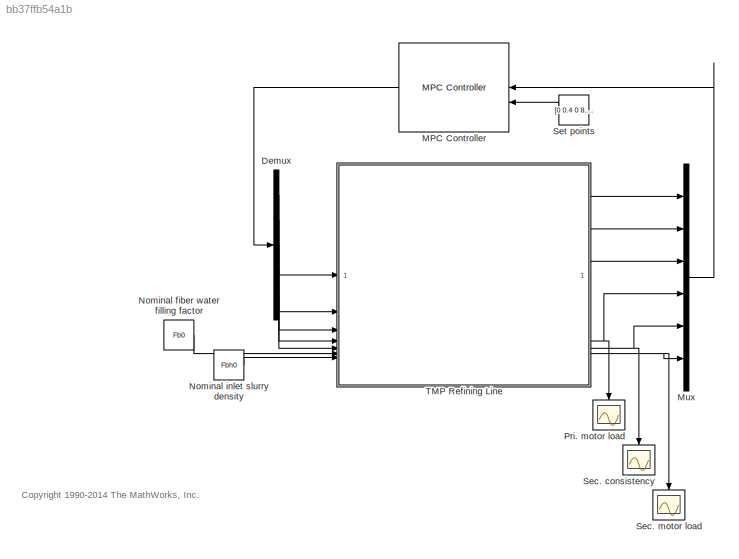
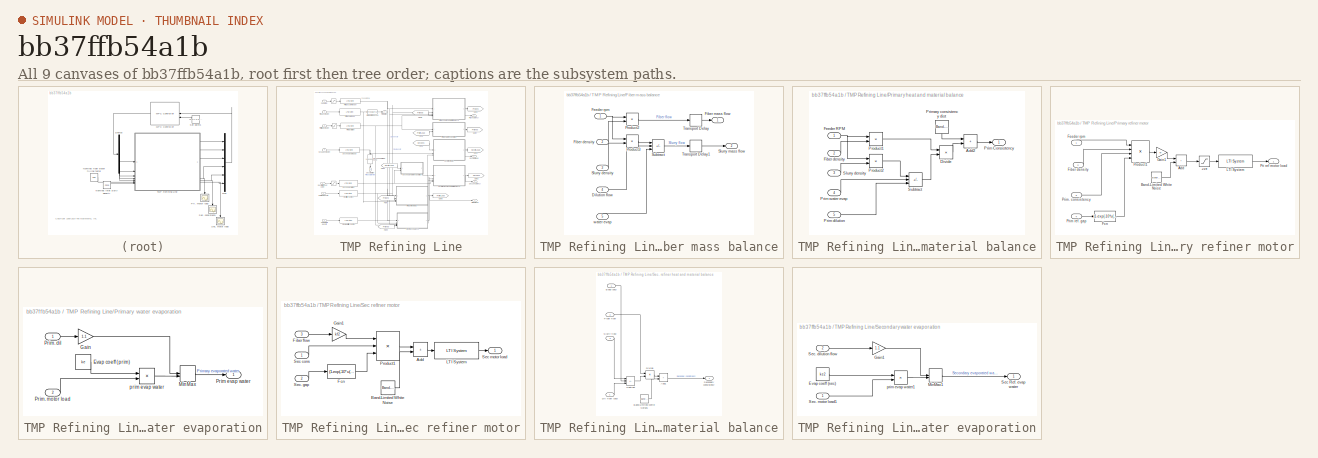
[diagram: thumbnail index - all 9 canvases of the model, root first then tree order]
MODEL slx_bb37ffb54a1b
KIND model
CONFIG AbsTol = auto
CONFIG EnableMultiTasking = off
CONFIG FixedStep = auto
CONFIG MaxStep = auto
CONFIG MinStep = auto
CONFIG RelTol = 1e-3
CONFIG SampleTimeConstraint = Unconstrained
CONFIG SolverName = VariableStepAuto
CONFIG StartTime = 0.0
CONFIG StopTime = 100
BLOCK [Demux] Demux
  Outputs = 5
BLOCK [Reference] MPC Controller  REF=mpclib/MPC Controller  (lib defined in mdl_ae329e0e0455)
  SourceBlock = mpclib/MPC Controller
  SourceType = MPC
BLOCK [Mux] Mux
  DisplayOption = bar
  Inputs = 6
BLOCK [Constant] Nominal fiber water filling factor
  NameLocation = top
  Value = Fb0
BLOCK [Constant] Nominal inlet slurry density
  Value = Fbh0
BLOCK [Scope] Pri. motor load
  Floating = off
  NameLocation = left
  NumInputPorts = 1
  ScopeSpecificationString = Simulink.scopes.TimeScopeBlockCfg('CurrentConfiguration', extmgr.ConfigurationSet(extmgr.Configuration('Core','General UI',true),extmgr.Configuration('Core','Source UI',true),extmgr.Configuration('Sources','WiredSimulink',true,'DataLoggingSaveFormat','StructureWithTime','DataLoggingLimitDataPoints',true,'DataLoggingDecimation','1','DataLoggingVariableName','ScopeData1'),extmgr.Configuration('Visua...<+1660ch>
BLOCK [Scope] Sec. consistency
  Floating = off
  NameLocation = left
  NumInputPorts = 1
  ScopeSpecificationString = Simulink.scopes.TimeScopeBlockCfg('CurrentConfiguration', extmgr.ConfigurationSet(extmgr.Configuration('Core','General UI',true),extmgr.Configuration('Core','Source UI',true),extmgr.Configuration('Sources','WiredSimulink',true,'DataLoggingVariableName','ScopeData2','DataLoggingSaveFormat','StructureWithTime','DataLoggingLimitDataPoints',true,'DataLoggingDecimation','1'),extmgr.Configuration('Visua...<+1660ch>
BLOCK [Scope] Sec. motor load
  Floating = off
  NameLocation = left
  NumInputPorts = 1
  ScopeSpecificationString = Simulink.scopes.TimeScopeBlockCfg('CurrentConfiguration', extmgr.ConfigurationSet(extmgr.Configuration('Core','General UI',true),extmgr.Configuration('Core','Source UI',true),extmgr.Configuration('Sources','WiredSimulink',true,'DataLoggingSaveFormat','StructureWithTime','DataLoggingLimitDataPoints',true,'DataLoggingDecimation','1'),extmgr.Configuration('Visuals','Time Domain',true,'SerializedDispl...<+1621ch>
BLOCK [Constant] Set points
  NameLocation = top
  Value = [0 0.4 0 8.5 0.3 6]
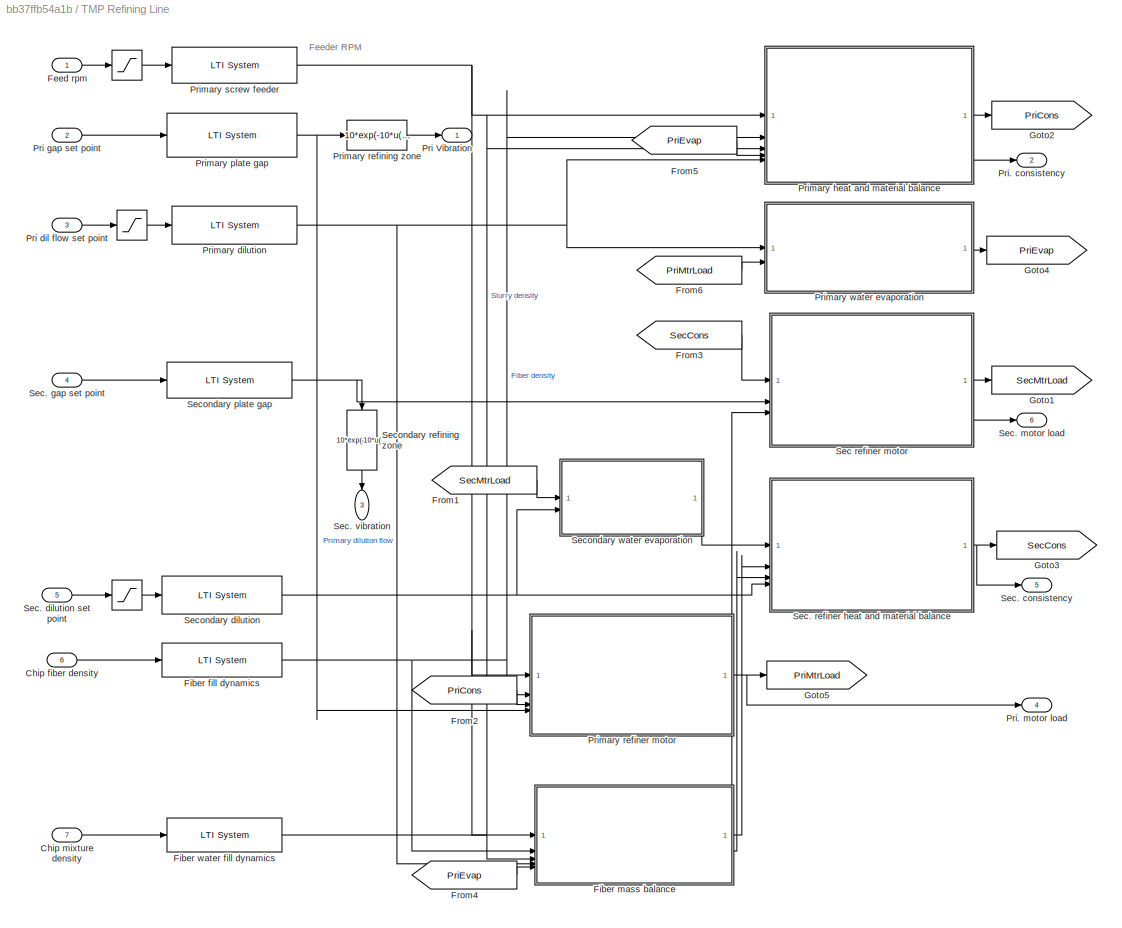
BLOCK [SubSystem] TMP Refining Line
BLOCK [Saturate] TMP Refining Line/  
  LowerLimit = 25
  SampleTime = 0.5
  UpperLimit = 35
BLOCK [Saturate] TMP Refining Line/    
  LowerLimit = 90
  SampleTime = 0.5
  UpperLimit = 200
BLOCK [Saturate] TMP Refining Line/       
  LowerLimit = 90
  SampleTime = 0.5
  UpperLimit = 200
BLOCK [Inport] TMP Refining Line/Chip fiber density
  Port = 6
BLOCK [Inport] TMP Refining Line/Chip mixture density
  Port = 7
BLOCK [Inport] TMP Refining Line/Feed rpm
BLOCK [Reference] TMP Refining Line/Fiber fill dynamics  REF=cstblocks/LTI System
  SourceBlock = cstblocks/LTI System
  SourceType = LTI Block
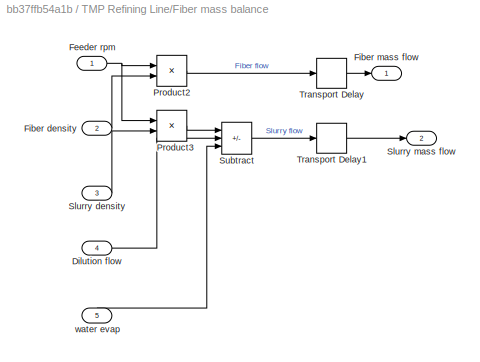
BLOCK [SubSystem] TMP Refining Line/Fiber mass balance
BLOCK [Inport] TMP Refining Line/Fiber mass balance/Dilution flow
  Port = 4
BLOCK [Inport] TMP Refining Line/Fiber mass balance/Feeder rpm
BLOCK [Inport] TMP Refining Line/Fiber mass balance/Fiber density
  Port = 2
BLOCK [Outport] TMP Refining Line/Fiber mass balance/Fiber mass flow
BLOCK [Product] TMP Refining Line/Fiber mass balance/Product2
  RndMeth = Zero
BLOCK [Product] TMP Refining Line/Fiber mass balance/Product3
  RndMeth = Zero
BLOCK [Inport] TMP Refining Line/Fiber mass balance/Slurry density
  Port = 3
BLOCK [Outport] TMP Refining Line/Fiber mass balance/Slurry mass flow
  Port = 2
BLOCK [Sum] TMP Refining Line/Fiber mass balance/Subtract
  IconShape = rectangular
  Inputs = ++-
BLOCK [TransportDelay] TMP Refining Line/Fiber mass balance/Transport Delay
  DelayTime = 2
  InitialOutput = m2
BLOCK [TransportDelay] TMP Refining Line/Fiber mass balance/Transport Delay1
  DelayTime = 2
  InitialOutput = M2
BLOCK [Inport] TMP Refining Line/Fiber mass balance/water evap
  NameLocation = right
  Port = 5
BLOCK [Reference] TMP Refining Line/Fiber water fill dynamics  REF=cstblocks/LTI System
  SourceBlock = cstblocks/LTI System
  SourceType = LTI Block
BLOCK [From] TMP Refining Line/From1
  CloseFcn = tagdialog Close
  GotoTag = SecMtrLoad
BLOCK [From] TMP Refining Line/From2
  CloseFcn = tagdialog Close
  GotoTag = PriCons
BLOCK [From] TMP Refining Line/From3
  CloseFcn = tagdialog Close
  GotoTag = SecCons
BLOCK [From] TMP Refining Line/From4
  CloseFcn = tagdialog Close
  GotoTag = PriEvap
BLOCK [From] TMP Refining Line/From5
  CloseFcn = tagdialog Close
  GotoTag = PriEvap
BLOCK [From] TMP Refining Line/From6
  CloseFcn = tagdialog Close
  GotoTag = PriMtrLoad
BLOCK [Goto] TMP Refining Line/Goto1
  GotoTag = SecMtrLoad
BLOCK [Goto] TMP Refining Line/Goto2
  GotoTag = PriCons
BLOCK [Goto] TMP Refining Line/Goto3
  GotoTag = SecCons
BLOCK [Goto] TMP Refining Line/Goto4
  GotoTag = PriEvap
BLOCK [Goto] TMP Refining Line/Goto5
  GotoTag = PriMtrLoad
BLOCK [Outport] TMP Refining Line/Pri Vibration
BLOCK [Inport] TMP Refining Line/Pri dil flow set point
  Port = 3
BLOCK [Inport] TMP Refining Line/Pri gap set point
  Port = 2
BLOCK [Outport] TMP Refining Line/Pri. consistency
  Port = 2
BLOCK [Outport] TMP Refining Line/Pri. motor load
  Port = 4
BLOCK [Reference] TMP Refining Line/Primary dilution  REF=cstblocks/LTI System
  SourceBlock = cstblocks/LTI System
  SourceType = LTI Block
BLOCK [SubSystem] TMP Refining Line/Primary heat and material balance
BLOCK [Sum] TMP Refining Line/Primary heat and material balance/Add2
  IconShape = rectangular
BLOCK [Product] TMP Refining Line/Primary heat and material balance/Divide
  Inputs = */
  SampleTime = .5
BLOCK [Inport] TMP Refining Line/Primary heat and material balance/Feeder RPM
BLOCK [Inport] TMP Refining Line/Primary heat and material balance/Fiber density
  Port = 2
BLOCK [Outport] TMP Refining Line/Primary heat and material balance/Prim Consistency
BLOCK [Inport] TMP Refining Line/Primary heat and material balance/Prim dilution
  Port = 5
BLOCK [Inport] TMP Refining Line/Primary heat and material balance/Prim water evap
  Port = 4
BLOCK [Reference] TMP Refining Line/Primary heat and material balance/Primary consistency dist  REF=simulink/Sources/Band-Limited
White Noise
  NameLocation = left
  SourceBlock = simulink/Sources/Band-Limited\nWhite Noise
  SourceType = Band-Limited White Noise.
BLOCK [Product] TMP Refining Line/Primary heat and material balance/Product1
  RndMeth = Zero
BLOCK [Product] TMP Refining Line/Primary heat and material balance/Product2
  RndMeth = Zero
BLOCK [Inport] TMP Refining Line/Primary heat and material balance/Slurry density
  Port = 3
BLOCK [Sum] TMP Refining Line/Primary heat and material balance/Subtract
  IconShape = rectangular
  Inputs = +-+
BLOCK [Reference] TMP Refining Line/Primary plate gap  REF=cstblocks/LTI System
  SourceBlock = cstblocks/LTI System
  SourceType = LTI Block
BLOCK [SubSystem] TMP Refining Line/Primary refiner motor
BLOCK [Saturate] TMP Refining Line/Primary refiner motor/+ve
  LowerLimit = 0
  SampleTime = 0.5
  UpperLimit = inf
BLOCK [Sum] TMP Refining Line/Primary refiner motor/Add
  IconShape = rectangular
BLOCK [Reference] TMP Refining Line/Primary refiner motor/Band-Limited White Noise  REF=simulink/Sources/Band-Limited
White Noise
  SourceBlock = simulink/Sources/Band-Limited\nWhite Noise
  SourceType = Band-Limited White Noise.
BLOCK [Fcn] TMP Refining Line/Primary refiner motor/Fcn
  Expr = (1-exp(-10*u(1)))*(1.2-0.3*u(1))
BLOCK [Inport] TMP Refining Line/Primary refiner motor/Feeder rpm
  NameLocation = right
BLOCK [Inport] TMP Refining Line/Primary refiner motor/Fiber density
  Port = 2
BLOCK [Gain] TMP Refining Line/Primary refiner motor/Gain1
  Gain = kf
BLOCK [Reference] TMP Refining Line/Primary refiner motor/LTI System  REF=cstblocks/LTI System
  SourceBlock = cstblocks/LTI System
  SourceType = LTI Block
BLOCK [Outport] TMP Refining Line/Primary refiner motor/Pri ref motor load
BLOCK [Inport] TMP Refining Line/Primary refiner motor/Prim ref. gap
  Port = 4
BLOCK [Inport] TMP Refining Line/Primary refiner motor/Prim. consistency
  Port = 3
BLOCK [Product] TMP Refining Line/Primary refiner motor/Product1
  Inputs = 4
  RndMeth = Zero
BLOCK [Fcn] TMP Refining Line/Primary refining zone
  Expr = 10*exp(-10*u(1)+2)*(1.26-0.3*u(1))-(1-exp(-10*u(1)+2))*.3+.3
BLOCK [Reference] TMP Refining Line/Primary screw feeder  REF=cstblocks/LTI System
  SourceBlock = cstblocks/LTI System
  SourceType = LTI Block
BLOCK [SubSystem] TMP Refining Line/Primary water evaporation
BLOCK [Constant] TMP Refining Line/Primary water evaporation/Evap coeff (prim)
  Value = ke
BLOCK [Gain] TMP Refining Line/Primary water evaporation/Gain
  Gain = 1.1
BLOCK [MinMax] TMP Refining Line/Primary water evaporation/MinMax
  Inputs = 2
BLOCK [Outport] TMP Refining Line/Primary water evaporation/Prim evap water
BLOCK [Inport] TMP Refining Line/Primary water evaporation/Prim. dil
BLOCK [Inport] TMP Refining Line/Primary water evaporation/Prim. motor load
  Port = 2
BLOCK [Product] TMP Refining Line/Primary water evaporation/prim evap water
  RndMeth = Zero
BLOCK [SubSystem] TMP Refining Line/Sec refiner motor
BLOCK [Sum] TMP Refining Line/Sec refiner motor/Add
  IconShape = rectangular
BLOCK [Reference] TMP Refining Line/Sec refiner motor/Band-Limited White Noise  REF=simulink/Sources/Band-Limited
White Noise
  SourceBlock = simulink/Sources/Band-Limited\nWhite Noise
  SourceType = Band-Limited White Noise.
BLOCK [Fcn] TMP Refining Line/Sec refiner motor/Fcn
  Expr = (1-exp(-10*u(1)))*(1.2-0.3*u(1))
BLOCK [Inport] TMP Refining Line/Sec refiner motor/Fiber flow
  Port = 3
BLOCK [Gain] TMP Refining Line/Sec refiner motor/Gain1
  Gain = kf2
BLOCK [Reference] TMP Refining Line/Sec refiner motor/LTI System  REF=cstblocks/LTI System
  SourceBlock = cstblocks/LTI System
  SourceType = LTI Block
BLOCK [Product] TMP Refining Line/Sec refiner motor/Product1
  Inputs = 3
  RndMeth = Zero
BLOCK [Inport] TMP Refining Line/Sec refiner motor/Sec cons
BLOCK [Outport] TMP Refining Line/Sec refiner motor/Sec motor load
BLOCK [Inport] TMP Refining Line/Sec refiner motor/Sec. gap
  Port = 2
BLOCK [Outport] TMP Refining Line/Sec. consistency
  Port = 5
BLOCK [Inport] TMP Refining Line/Sec. dilution set point
  Port = 5
BLOCK [Inport] TMP Refining Line/Sec. gap set point
  Port = 4
BLOCK [Outport] TMP Refining Line/Sec. motor load
  Port = 6
BLOCK [SubSystem] TMP Refining Line/Sec. refiner heat and material balance
BLOCK [Sum] TMP Refining Line/Sec. refiner heat and material balance/Add1
  IconShape = rectangular
BLOCK [Reference] TMP Refining Line/Sec. refiner heat and material balance/Band-Limited White Noise1  REF=simulink/Sources/Band-Limited
White Noise
  SourceBlock = simulink/Sources/Band-Limited\nWhite Noise
  SourceType = Band-Limited White Noise.
BLOCK [Inport] TMP Refining Line/Sec. refiner heat and material balance/Dil flow (sec)
  Port = 4
BLOCK [Product] TMP Refining Line/Sec. refiner heat and material balance/Divide
  Inputs = */
  SampleTime = .5
BLOCK [Inport] TMP Refining Line/Sec. refiner heat and material balance/Evap (sec)
BLOCK [Inport] TMP Refining Line/Sec. refiner heat and material balance/Fiber flow
  Port = 2
BLOCK [Outport] TMP Refining Line/Sec. refiner heat and material balance/Secondary consistency
BLOCK [Inport] TMP Refining Line/Sec. refiner heat and material balance/Slurry flow
  Port = 3
BLOCK [Sum] TMP Refining Line/Sec. refiner heat and material balance/Subtract
  IconShape = rectangular
  Inputs = +-+
BLOCK [Outport] TMP Refining Line/Sec. vibration
  NameLocation = left
  Port = 3
BLOCK [Reference] TMP Refining Line/Secondary dilution   REF=cstblocks/LTI System
  SourceBlock = cstblocks/LTI System
  SourceType = LTI Block
BLOCK [Reference] TMP Refining Line/Secondary plate gap  REF=cstblocks/LTI System
  SourceBlock = cstblocks/LTI System
  SourceType = LTI Block
BLOCK [Fcn] TMP Refining Line/Secondary refining zone
  Expr = 10*exp(-10*u(1)+2)*(1.26-0.3*u(1))-(1-exp(-10*u(1)+2))*.3+.3
  NameLocation = left
  SampleTime = 0.5
BLOCK [SubSystem] TMP Refining Line/Secondary water evaporation
BLOCK [Constant] TMP Refining Line/Secondary water evaporation/Evap coeff (sec)
  Value = ke2
BLOCK [Gain] TMP Refining Line/Secondary water evaporation/Gain1
  Gain = 1.1
BLOCK [MinMax] TMP Refining Line/Secondary water evaporation/MinMax1
  Inputs = 2
BLOCK [Outport] TMP Refining Line/Secondary water evaporation/Sec Ref. evap water
BLOCK [Inport] TMP Refining Line/Secondary water evaporation/Sec. dilution flow
  Port = 2
BLOCK [Inport] TMP Refining Line/Secondary water evaporation/Sec. motor load1
BLOCK [Product] TMP Refining Line/Secondary water evaporation/prim evap water1
  RndMeth = Zero
ANNOTATION (root): <copyright redacted>
ANNOTATION TMP Refining Line: Feeder RPM
LINE Demux:1 -> TMP Refining Line:1
LINE Demux:2 -> TMP Refining Line:2
LINE Demux:3 -> TMP Refining Line:3
LINE Demux:4 -> TMP Refining Line:4
LINE Demux:5 -> TMP Refining Line:5
LINE MPC Controller:1 -> Demux:1
LINE Mux:1 -> MPC Controller:1
LINE Nominal fiber water filling factor:1 -> TMP Refining Line:6
LINE Nominal inlet slurry density:1 -> TMP Refining Line:7
LINE Set points:1 -> MPC Controller:2
LINE TMP Refining Line/       :1 -> TMP Refining Line/Secondary dilution :1
LINE TMP Refining Line/    :1 -> TMP Refining Line/Primary dilution:1
LINE TMP Refining Line/  :1 -> TMP Refining Line/Primary screw feeder:1
LINE TMP Refining Line/Chip fiber density:1 -> TMP Refining Line/Fiber fill dynamics:1
LINE TMP Refining Line/Chip mixture density:1 -> TMP Refining Line/Fiber water fill dynamics:1
LINE TMP Refining Line/Feed rpm:1 -> TMP Refining Line/  :1
NET TMP Refining Line/Fiber fill dynamics:1 -> TMP Refining Line/Fiber mass balance:2, TMP Refining Line/Primary heat and material balance:2, TMP Refining Line/Primary refiner motor:2
LINE TMP Refining Line/Fiber mass balance/Dilution flow:1 -> TMP Refining Line/Fiber mass balance/Subtract:2
NET TMP Refining Line/Fiber mass balance/Feeder rpm:1 -> TMP Refining Line/Fiber mass balance/Product2:1, TMP Refining Line/Fiber mass balance/Product3:1
LINE TMP Refining Line/Fiber mass balance/Fiber density:1 -> TMP Refining Line/Fiber mass balance/Product2:2
LINE TMP Refining Line/Fiber mass balance/Product2:1 -> TMP Refining Line/Fiber mass balance/Transport Delay:1
LINE TMP Refining Line/Fiber mass balance/Product3:1 -> TMP Refining Line/Fiber mass balance/Subtract:1
LINE TMP Refining Line/Fiber mass balance/Slurry density:1 -> TMP Refining Line/Fiber mass balance/Product3:2
LINE TMP Refining Line/Fiber mass balance/Subtract:1 -> TMP Refining Line/Fiber mass balance/Transport Delay1:1
LINE TMP Refining Line/Fiber mass balance/Transport Delay1:1 -> TMP Refining Line/Fiber mass balance/Slurry mass flow:1
LINE TMP Refining Line/Fiber mass balance/Transport Delay:1 -> TMP Refining Line/Fiber mass balance/Fiber mass flow:1
LINE TMP Refining Line/Fiber mass balance/water evap:1 -> TMP Refining Line/Fiber mass balance/Subtract:3
NET TMP Refining Line/Fiber mass balance:1 -> TMP Refining Line/Sec refiner motor:3, TMP Refining Line/Sec. refiner heat and material balance:2
LINE TMP Refining Line/Fiber mass balance:2 -> TMP Refining Line/Sec. refiner heat and material balance:3
NET TMP Refining Line/Fiber water fill dynamics:1 -> TMP Refining Line/Fiber mass balance:3, TMP Refining Line/Primary heat and material balance:3
LINE TMP Refining Line/From1:1 -> TMP Refining Line/Secondary water evaporation:1
LINE TMP Refining Line/From2:1 -> TMP Refining Line/Primary refiner motor:3
LINE TMP Refining Line/From3:1 -> TMP Refining Line/Sec refiner motor:1
LINE TMP Refining Line/From4:1 -> TMP Refining Line/Fiber mass balance:5
LINE TMP Refining Line/From5:1 -> TMP Refining Line/Primary heat and material balance:4
LINE TMP Refining Line/From6:1 -> TMP Refining Line/Primary water evaporation:2
LINE TMP Refining Line/Pri dil flow set point:1 -> TMP Refining Line/    :1
LINE TMP Refining Line/Pri gap set point:1 -> TMP Refining Line/Primary plate gap:1
NET TMP Refining Line/Primary dilution:1 -> TMP Refining Line/Fiber mass balance:4, TMP Refining Line/Primary heat and material balance:5, TMP Refining Line/Primary water evaporation:1
LINE TMP Refining Line/Primary heat and material balance/Add2:1 -> TMP Refining Line/Primary heat and material balance/Prim Consistency:1
LINE TMP Refining Line/Primary heat and material balance/Divide:1 -> TMP Refining Line/Primary heat and material balance/Add2:2
NET TMP Refining Line/Primary heat and material balance/Feeder RPM:1 -> TMP Refining Line/Primary heat and material balance/Product1:1, TMP Refining Line/Primary heat and material balance/Product2:1
LINE TMP Refining Line/Primary heat and material balance/Fiber density:1 -> TMP Refining Line/Primary heat and material balance/Product1:2
LINE TMP Refining Line/Primary heat and material balance/Prim dilution:1 -> TMP Refining Line/Primary heat and material balance/Subtract:3
LINE TMP Refining Line/Primary heat and material balance/Prim water evap:1 -> TMP Refining Line/Primary heat and material balance/Subtract:2
LINE TMP Refining Line/Primary heat and material balance/Primary consistency dist:1 -> TMP Refining Line/Primary heat and material balance/Add2:1
LINE TMP Refining Line/Primary heat and material balance/Product1:1 -> TMP Refining Line/Primary heat and material balance/Divide:1
LINE TMP Refining Line/Primary heat and material balance/Product2:1 -> TMP Refining Line/Primary heat and material balance/Subtract:1
LINE TMP Refining Line/Primary heat and material balance/Slurry density:1 -> TMP Refining Line/Primary heat and material balance/Product2:2
LINE TMP Refining Line/Primary heat and material balance/Subtract:1 -> TMP Refining Line/Primary heat and material balance/Divide:2
NET TMP Refining Line/Primary heat and material balance:1 -> TMP Refining Line/Goto2:1, TMP Refining Line/Pri. consistency:1
NET TMP Refining Line/Primary plate gap:1 -> TMP Refining Line/Primary refiner motor:4, TMP Refining Line/Primary refining zone:1
LINE TMP Refining Line/Primary refiner motor/+ve:1 -> TMP Refining Line/Primary refiner motor/LTI System:1
LINE TMP Refining Line/Primary refiner motor/Add:1 -> TMP Refining Line/Primary refiner motor/+ve:1
LINE TMP Refining Line/Primary refiner motor/Band-Limited White Noise:1 -> TMP Refining Line/Primary refiner motor/Add:2
LINE TMP Refining Line/Primary refiner motor/Fcn:1 -> TMP Refining Line/Primary refiner motor/Product1:4
LINE TMP Refining Line/Primary refiner motor/Feeder rpm:1 -> TMP Refining Line/Primary refiner motor/Product1:1
LINE TMP Refining Line/Primary refiner motor/Fiber density:1 -> TMP Refining Line/Primary refiner motor/Product1:2
LINE TMP Refining Line/Primary refiner motor/Gain1:1 -> TMP Refining Line/Primary refiner motor/Add:1
LINE TMP Refining Line/Primary refiner motor/LTI System:1 -> TMP Refining Line/Primary refiner motor/Pri ref motor load:1
LINE TMP Refining Line/Primary refiner motor/Prim ref. gap:1 -> TMP Refining Line/Primary refiner motor/Fcn:1
LINE TMP Refining Line/Primary refiner motor/Prim. consistency:1 -> TMP Refining Line/Primary refiner motor/Product1:3
LINE TMP Refining Line/Primary refiner motor/Product1:1 -> TMP Refining Line/Primary refiner motor/Gain1:1
NET TMP Refining Line/Primary refiner motor:1 -> TMP Refining Line/Goto5:1, TMP Refining Line/Pri. motor load:1
LINE TMP Refining Line/Primary refining zone:1 -> TMP Refining Line/Pri Vibration:1
NET TMP Refining Line/Primary screw feeder:1 -> TMP Refining Line/Fiber mass balance:1, TMP Refining Line/Primary heat and material balance:1, TMP Refining Line/Primary refiner motor:1
LINE TMP Refining Line/Primary water evaporation/Evap coeff (prim):1 -> TMP Refining Line/Primary water evaporation/prim evap water:1
LINE TMP Refining Line/Primary water evaporation/Gain:1 -> TMP Refining Line/Primary water evaporation/MinMax:1
LINE TMP Refining Line/Primary water evaporation/MinMax:1 -> TMP Refining Line/Primary water evaporation/Prim evap water:1
LINE TMP Refining Line/Primary water evaporation/Prim. dil:1 -> TMP Refining Line/Primary water evaporation/Gain:1
LINE TMP Refining Line/Primary water evaporation/Prim. motor load:1 -> TMP Refining Line/Primary water evaporation/prim evap water:2
LINE TMP Refining Line/Primary water evaporation/prim evap water:1 -> TMP Refining Line/Primary water evaporation/MinMax:2
LINE TMP Refining Line/Primary water evaporation:1 -> TMP Refining Line/Goto4:1
LINE TMP Refining Line/Sec refiner motor/Add:1 -> TMP Refining Line/Sec refiner motor/LTI System:1
LINE TMP Refining Line/Sec refiner motor/Band-Limited White Noise:1 -> TMP Refining Line/Sec refiner motor/Add:2
LINE TMP Refining Line/Sec refiner motor/Fcn:1 -> TMP Refining Line/Sec refiner motor/Product1:3
LINE TMP Refining Line/Sec refiner motor/Fiber flow:1 -> TMP Refining Line/Sec refiner motor/Gain1:1
LINE TMP Refining Line/Sec refiner motor/Gain1:1 -> TMP Refining Line/Sec refiner motor/Product1:1
LINE TMP Refining Line/Sec refiner motor/LTI System:1 -> TMP Refining Line/Sec refiner motor/Sec motor load:1
LINE TMP Refining Line/Sec refiner motor/Product1:1 -> TMP Refining Line/Sec refiner motor/Add:1
LINE TMP Refining Line/Sec refiner motor/Sec cons:1 -> TMP Refining Line/Sec refiner motor/Product1:2
LINE TMP Refining Line/Sec refiner motor/Sec. gap:1 -> TMP Refining Line/Sec refiner motor/Fcn:1
NET TMP Refining Line/Sec refiner motor:1 -> TMP Refining Line/Goto1:1, TMP Refining Line/Sec. motor load:1
LINE TMP Refining Line/Sec. dilution set point:1 -> TMP Refining Line/       :1
LINE TMP Refining Line/Sec. gap set point:1 -> TMP Refining Line/Secondary plate gap:1
LINE TMP Refining Line/Sec. refiner heat and material balance/Add1:1 -> TMP Refining Line/Sec. refiner heat and material balance/Secondary consistency:1
LINE TMP Refining Line/Sec. refiner heat and material balance/Band-Limited White Noise1:1 -> TMP Refining Line/Sec. refiner heat and material balance/Add1:2
LINE TMP Refining Line/Sec. refiner heat and material balance/Dil flow (sec):1 -> TMP Refining Line/Sec. refiner heat and material balance/Subtract:3
LINE TMP Refining Line/Sec. refiner heat and material balance/Divide:1 -> TMP Refining Line/Sec. refiner heat and material balance/Add1:1
LINE TMP Refining Line/Sec. refiner heat and material balance/Evap (sec):1 -> TMP Refining Line/Sec. refiner heat and material balance/Subtract:2
LINE TMP Refining Line/Sec. refiner heat and material balance/Fiber flow:1 -> TMP Refining Line/Sec. refiner heat and material balance/Divide:1
LINE TMP Refining Line/Sec. refiner heat and material balance/Slurry flow:1 -> TMP Refining Line/Sec. refiner heat and material balance/Subtract:1
LINE TMP Refining Line/Sec. refiner heat and material balance/Subtract:1 -> TMP Refining Line/Sec. refiner heat and material balance/Divide:2
NET TMP Refining Line/Sec. refiner heat and material balance:1 -> TMP Refining Line/Goto3:1, TMP Refining Line/Sec. consistency:1
NET TMP Refining Line/Secondary dilution :1 -> TMP Refining Line/Sec. refiner heat and material balance:4, TMP Refining Line/Secondary water evaporation:2
NET TMP Refining Line/Secondary plate gap:1 -> TMP Refining Line/Sec refiner motor:2, TMP Refining Line/Secondary refining zone:1
LINE TMP Refining Line/Secondary refining zone:1 -> TMP Refining Line/Sec. vibration:1
LINE TMP Refining Line/Secondary water evaporation/Evap coeff (sec):1 -> TMP Refining Line/Secondary water evaporation/prim evap water1:1
LINE TMP Refining Line/Secondary water evaporation/Gain1:1 -> TMP Refining Line/Secondary water evaporation/MinMax1:1
LINE TMP Refining Line/Secondary water evaporation/MinMax1:1 -> TMP Refining Line/Secondary water evaporation/Sec Ref. evap water:1
LINE TMP Refining Line/Secondary water evaporation/Sec. dilution flow:1 -> TMP Refining Line/Secondary water evaporation/Gain1:1
LINE TMP Refining Line/Secondary water evaporation/Sec. motor load1:1 -> TMP Refining Line/Secondary water evaporation/prim evap water1:2
LINE TMP Refining Line/Secondary water evaporation/prim evap water1:1 -> TMP Refining Line/Secondary water evaporation/MinMax1:2
LINE TMP Refining Line/Secondary water evaporation:1 -> TMP Refining Line/Sec. refiner heat and material balance:1
LINE TMP Refining Line:1 -> Mux:1
LINE TMP Refining Line:2 -> Mux:2
LINE TMP Refining Line:3 -> Mux:3
NET TMP Refining Line:4 -> Mux:4, Pri. motor load:1
NET TMP Refining Line:5 -> Mux:5, Sec. consistency:1
NET TMP Refining Line:6 -> Mux:6, Sec. motor load:1
note: NET lines group one-source signal fan-out (src -> all destinations, sorted); 1:1 wires keep LINE
